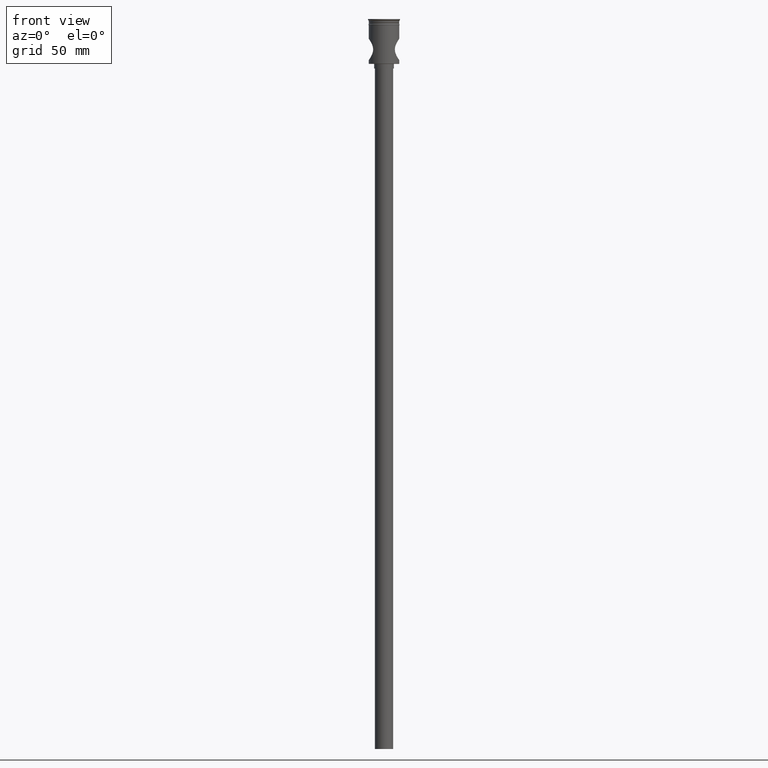
[diagram: clean part render]
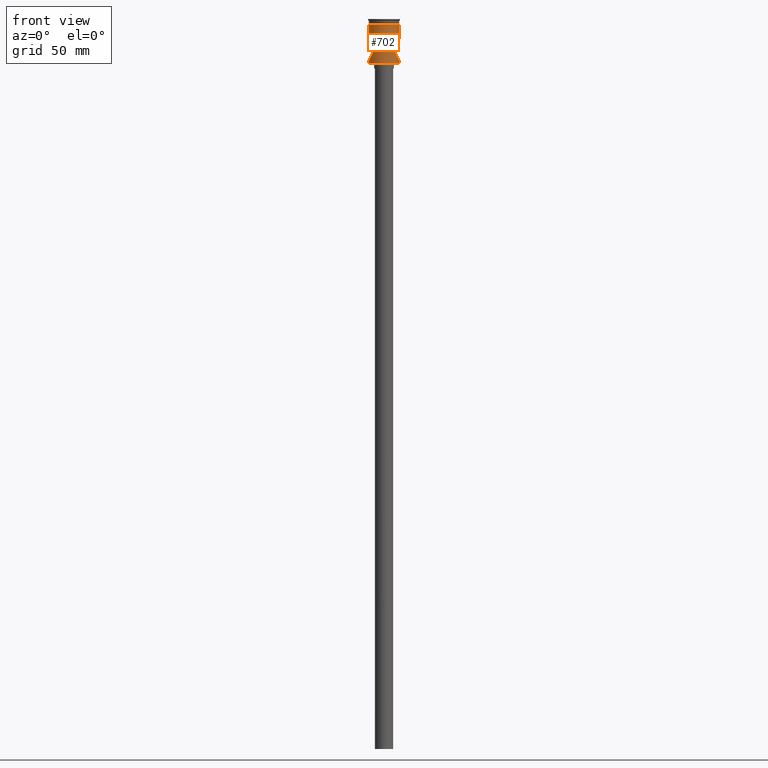
[diagram: same view with one face highlighted and labeled with its STEP entity id]
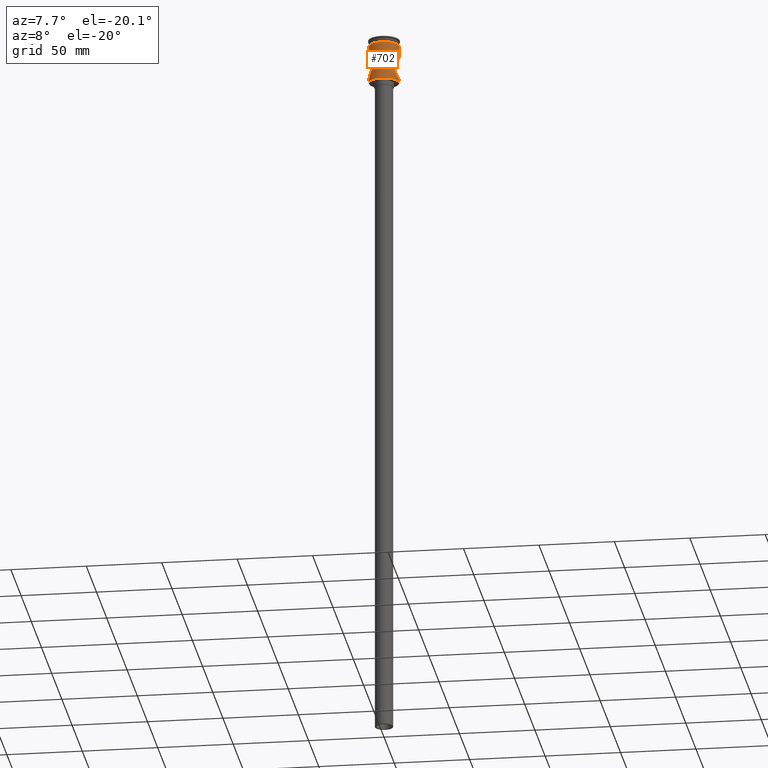
[diagram: same view with one face highlighted and labeled with its STEP entity id]
A machine part, front view. The second image highlights one B-rep face of the part: STEP entity #702.
A second angle (auxiliary view) of the same face is appended — the face is thin or edge-on in the first view.
In plain terms, the highlighted cylindrical surface (edge-blend (fillet) strip) has radius 10 mm, axis along (-0, -0, 1).
Its self-contained STEP definition (entity closure, byte-faithful):
#10 = CARTESIAN_POINT ( 'NONE',  ( -9.999999999999994671, 1.224646799147352665E-15, -29.29999999999994387 ) ) ;
#15 = CARTESIAN_POINT ( 'NONE',  ( -9.999999999999996447, 0.000000000000000000, -27.00000000000000355 ) ) ;
#37 = CARTESIAN_POINT ( 'NONE',  ( 9.832878540591767802, -1.879722866531851500, -13.24054240779418912 ) ) ;
#50 = CARTESIAN_POINT ( 'NONE',  ( -8.315624236750039699, -5.562535070965513029, -24.27231501587448292 ) ) ;
#55 = CARTESIAN_POINT ( 'NONE',  ( 0.000000000000000000, 0.000000000000000000, -29.29999999999994387 ) ) ;
#75 = CARTESIAN_POINT ( 'NONE',  ( -7.720495804876727597, -6.356685689900114511, -17.05985571267803991 ) ) ;
#81 = CARTESIAN_POINT ( 'NONE',  ( 9.999999999999994671, 0.000000000000000000, -29.29999999999994387 ) ) ;
#91 = CARTESIAN_POINT ( 'NONE',  ( 8.322069302564294446, -5.553051878775055350, -24.28499264081531805 ) ) ;
#99 = CARTESIAN_POINT ( 'NONE',  ( -8.053311715077983379, -5.930176009131116643, -16.27420902905398847 ) ) ;
#113 = CARTESIAN_POINT ( 'NONE',  ( -9.999999999999994671, 1.229780025839397734E-15, -13.00000000000000355 ) ) ;
#115 = EDGE_CURVE ( 'NONE', #1435, #184, #1477, .T. ) ;
#126 = LINE ( 'NONE', #1098, #528 ) ;
#166 = CARTESIAN_POINT ( 'NONE',  ( 7.140877080678153632, -7.000562488098498903, -19.52635574343557678 ) ) ;
#181 = CARTESIAN_POINT ( 'NONE',  ( -7.234464554488559962, -6.904114004842420549, -18.82145945963318567 ) ) ;
#184 = VERTEX_POINT ( 'NONE', #484 ) ;
#185 = CARTESIAN_POINT ( 'NONE',  ( 9.999999999999996447, -0.2368473339933005184, -13.00000000000000178 ) ) ;
#189 = CARTESIAN_POINT ( 'NONE',  ( -7.325106434378655607, -6.807865243658027588, -21.64544578927128882 ) ) ;
#195 = CARTESIAN_POINT ( 'NONE',  ( -7.201179731105406212, -6.938600208746064979, -20.95536877560809330 ) ) ;
#225 = AXIS2_PLACEMENT_3D ( 'NONE', #55, #1011, #334 ) ;
#229 = CARTESIAN_POINT ( 'NONE',  ( -9.999999999999994671, 1.229780025839397734E-15, -13.00000000000000355 ) ) ;
#238 = CARTESIAN_POINT ( 'NONE',  ( 7.574535355013245486, -6.529908853628298537, -22.53201108648861961 ) ) ;
#284 = CARTESIAN_POINT ( 'NONE',  ( 9.492393824703038163, -3.176669941205827907, -13.74509325342724075 ) ) ;
#286 = DIRECTION ( 'NONE',  ( -0.000000000000000000, -0.000000000000000000, 1.000000000000000000 ) ) ;
#299 = CARTESIAN_POINT ( 'NONE',  ( -7.153700441637877994, -6.987541224765999814, -20.48080140017840378 ) ) ;
#306 = CARTESIAN_POINT ( 'NONE',  ( 8.315544161946235135, -5.562748588078726186, -15.72768175892419151 ) ) ;
#308 = CARTESIAN_POINT ( 'NONE',  ( -9.999999999999996447, 0.000000000000000000, -27.00000000000000355 ) ) ;
#314 = CARTESIAN_POINT ( 'NONE',  ( -9.965446655919851793, -0.9519641332654177335, -26.95088558220736275 ) ) ;
#317 = ORIENTED_EDGE ( 'NONE', *, *, #1041, .F. ) ;
#334 = DIRECTION ( 'NONE',  ( -1.000000000000000000, 0.000000000000000000, 0.000000000000000000 ) ) ;
#344 = VERTEX_POINT ( 'NONE', #608 ) ;
#345 = DIRECTION ( 'NONE',  ( -0.000000000000000000, -0.000000000000000000, 1.000000000000000000 ) ) ;
#353 = B_SPLINE_CURVE_WITH_KNOTS ( 'NONE', 3,
 ( #1473, #185, #400, #1498, #1239, #37, #1337, #284, #757, #879, #1465, #1129, #306, #523, #637, #1111, #894, #1457, #1345, #418, #766, #887, #166, #644, #426, #491, #366, #814, #238, #1048, #949, #714, #1185, #91, #1410, #478, #1179, #721, #1161, #360, #822, #1302, #591, #1290, #1057, #830 ),
 .UNSPECIFIED., .F., .F.,
 ( 4, 2, 2, 2, 2, 2, 2, 2, 2, 2, 2, 2, 2, 2, 2, 2, 2, 2, 2, 2, 2, 2, 4 ),
 ( 0.02273717132267115415, 0.02344677004960173464, 0.02415636877653231512, 0.02557556623039347263, 0.02699476368425463360, 0.02841396113811579111, 0.02983315859197695208, 0.03054275731890752910, 0.03125235604583810611, 0.03196195477276868313, 0.03267155349969926015, 0.03409075095356042112, 0.03550994840742158210, 0.03621954713435215911, 0.03692914586128273613, 0.03763874458821332009, 0.03834834331514389710, 0.03976754076900505808, 0.04118673822286621211, 0.04260593567672736615, 0.04331553440365794316, 0.04402513313058852018, 0.04544433058444967422 ),
 .UNSPECIFIED. ) ;
#360 = CARTESIAN_POINT ( 'NONE',  ( 9.675488818793544610, -2.536388918100088485, -26.52836702033824778 ) ) ;
#362 = DIRECTION ( 'NONE',  ( -0.000000000000000000, -0.000000000000000000, 1.000000000000000000 ) ) ;
#366 = CARTESIAN_POINT ( 'NONE',  ( 7.381411116935109540, -6.747102913955163039, -21.87877048370861033 ) ) ;
#399 = VERTEX_POINT ( 'NONE', #1422 ) ;
#400 = CARTESIAN_POINT ( 'NONE',  ( 9.991596185262174856, -0.4736682493084634071, -13.01198930438257939 ) ) ;
#414 = CARTESIAN_POINT ( 'NONE',  ( -9.834047061028449832, -1.872933838790286742, -26.76115115372198616 ) ) ;
#418 = CARTESIAN_POINT ( 'NONE',  ( 7.377383315084116155, -6.751497144694275754, -18.13709901651008494 ) ) ;
#421 = EDGE_CURVE ( 'NONE', #344, #723, #898, .T. ) ;
#426 = CARTESIAN_POINT ( 'NONE',  ( 7.191763660842745765, -6.949507115151161152, -20.96152780032075569 ) ) ;
#435 = DIRECTION ( 'NONE',  ( -0.000000000000000000, -0.000000000000000000, 1.000000000000000000 ) ) ;
#439 = CARTESIAN_POINT ( 'NONE',  ( -7.964400624432382614, -6.054727537725130837, -23.54044438658495153 ) ) ;
#452 = CARTESIAN_POINT ( 'NONE',  ( -9.553141715981869453, -2.964211287661886907, -13.65436461758241826 ) ) ;
#461 = EDGE_CURVE ( 'NONE', #620, #1489, #1344, .T. ) ;
#463 = CARTESIAN_POINT ( 'NONE',  ( -9.991574020215788110, -0.4743472386555552256, -13.01202085301403244 ) ) ;
#473 = ORIENTED_EDGE ( 'NONE', *, *, #928, .F. ) ;
#476 = CARTESIAN_POINT ( 'NONE',  ( -9.832512437962641627, -1.881659858244549621, -13.24107387809922720 ) ) ;
#478 = CARTESIAN_POINT ( 'NONE',  ( 8.860185483737918588, -4.650373212660213085, -25.25064384002004303 ) ) ;
#484 = CARTESIAN_POINT ( 'NONE',  ( 9.999999999999994671, 0.000000000000000000, -27.00000000000001066 ) ) ;
#491 = CARTESIAN_POINT ( 'NONE',  ( 7.326263957022343121, -6.806624336356016158, -21.65073055260621260 ) ) ;
#492 = ORIENTED_EDGE ( 'NONE', *, *, #461, .F. ) ;
#499 = ORIENTED_EDGE ( 'NONE', *, *, #421, .T. ) ;
#523 = CARTESIAN_POINT ( 'NONE',  ( 8.050554706296177088, -5.933943087171876130, -16.28011583648020988 ) ) ;
#524 = VECTOR ( 'NONE', #435, 1000.000000000000000 ) ;
#527 = CARTESIAN_POINT ( 'NONE',  ( -9.029024665842506181, -4.317593744654968368, -25.52832831042054451 ) ) ;
#528 = VECTOR ( 'NONE', #362, 1000.000000000000000 ) ;
#534 = CARTESIAN_POINT ( 'NONE',  ( -7.796463043157197959, -6.266459839169562507, -23.15209899686185580 ) ) ;
#540 = ORIENTED_EDGE ( 'NONE', *, *, #719, .F. ) ;
#548 = CARTESIAN_POINT ( 'NONE',  ( -9.999999999999998224, -0.4814323775651352944, -27.00000000000000711 ) ) ;
#558 = EDGE_CURVE ( 'NONE', #1281, #620, #1514, .T. ) ;
#581 = ORIENTED_EDGE ( 'NONE', *, *, #558, .F. ) ;
#591 = CARTESIAN_POINT ( 'NONE',  ( 9.867116120145132285, -1.641278058953922203, -26.80890176429205596 ) ) ;
#608 = CARTESIAN_POINT ( 'NONE',  ( 9.999999999999994671, -5.133226810943367768E-18, -13.00000000000000355 ) ) ;
#620 = VERTEX_POINT ( 'NONE', #15 ) ;
#637 = CARTESIAN_POINT ( 'NONE',  ( 7.963207023572480558, -6.050255927956311730, -16.47232531239752618 ) ) ;
#644 = CARTESIAN_POINT ( 'NONE',  ( 7.141989287018506438, -6.999427809131204548, -20.49012689816928301 ) ) ;
#657 = CARTESIAN_POINT ( 'NONE',  ( -7.368839572955796058, -6.761454996973015774, -18.12764364703030395 ) ) ;
#671 = CARTESIAN_POINT ( 'NONE',  ( -7.495754172928653425, -6.623269820279322317, -17.68917710553389711 ) ) ;
#674 = CARTESIAN_POINT ( 'NONE',  ( 9.999999999999994671, 0.000000000000000000, 0.000000000000000000 ) ) ;
#700 = EDGE_LOOP ( 'NONE', ( #581, #1450, #1454, #317, #499, #540, #473, #492 ) ) ;
#702 = ADVANCED_FACE ( 'NONE', ( #1005 ), #1361, .T. ) ;
#704 = CARTESIAN_POINT ( 'NONE',  ( -8.316470757484857756, -5.561257273121389844, -15.72607428983809008 ) ) ;
#714 = CARTESIAN_POINT ( 'NONE',  ( 7.969012120586810966, -6.042611853496006269, -23.54072391938827025 ) ) ;
#719 = EDGE_CURVE ( 'NONE', #399, #723, #1527, .T. ) ;
#721 = CARTESIAN_POINT ( 'NONE',  ( 9.351609315107900500, -3.564938189428362492, -26.04074502495871357 ) ) ;
#723 = VERTEX_POINT ( 'NONE', #874 ) ;
#757 = CARTESIAN_POINT ( 'NONE',  ( 9.347318963212909892, -3.576349491498993505, -13.96584429441085717 ) ) ;
#766 = CARTESIAN_POINT ( 'NONE',  ( 7.322655419112947150, -6.810500286563441641, -18.36528137380276249 ) ) ;
#772 = AXIS2_PLACEMENT_3D ( 'NONE', #1338, #286, #1467 ) ;
#776 = CARTESIAN_POINT ( 'NONE',  ( -7.153235015771535643, -6.988014041043822289, -19.52714534028609350 ) ) ;
#783 = CARTESIAN_POINT ( 'NONE',  ( -9.493823586986472662, -3.171854784083766532, -26.25704949909892605 ) ) ;
#788 = CARTESIAN_POINT ( 'NONE',  ( 0.000000000000000000, 0.000000000000000000, -3.999999999999996447 ) ) ;
#789 = CARTESIAN_POINT ( 'NONE',  ( -9.735585976469913305, -2.326309258653755929, -26.61812786508322759 ) ) ;
#795 = CARTESIAN_POINT ( 'NONE',  ( -9.267396788860443380, -3.762388530127550812, -14.09286872329777296 ) ) ;
#810 = CARTESIAN_POINT ( 'NONE',  ( -9.343068346694407111, -3.570972421456891865, -13.97506645596566699 ) ) ;
#814 = CARTESIAN_POINT ( 'NONE',  ( 7.505468983612138878, -6.608824641700789648, -22.31875249157932117 ) ) ;
#822 = CARTESIAN_POINT ( 'NONE',  ( 9.730782946235684960, -2.316105786581691195, -26.60989879506474054 ) ) ;
#830 = CARTESIAN_POINT ( 'NONE',  ( 9.999999999999994671, 0.000000000000000000, -27.00000000000001066 ) ) ;
#874 = CARTESIAN_POINT ( 'NONE',  ( 9.999999999999998224, 0.000000000000000000, -3.999999999999996447 ) ) ;
#879 = CARTESIAN_POINT ( 'NONE',  ( 9.028965068475372391, -4.317457269925927044, -14.47181101200376219 ) ) ;
#887 = CARTESIAN_POINT ( 'NONE',  ( 7.189382404875344967, -6.951946978929631982, -19.05590796920065344 ) ) ;
#894 = CARTESIAN_POINT ( 'NONE',  ( 7.717429328536873356, -6.360383034377455225, -17.06803860621226221 ) ) ;
#898 = LINE ( 'NONE', #1349, #1404 ) ;
#905 = CARTESIAN_POINT ( 'NONE',  ( -7.141483849871206324, -6.999943458932624374, -20.23958506209359243 ) ) ;
#919 = CARTESIAN_POINT ( 'NONE',  ( -7.967226261725709691, -6.044961550507585990, -16.46329765270407464 ) ) ;
#928 = EDGE_CURVE ( 'NONE', #1489, #399, #126, .T. ) ;
#949 = CARTESIAN_POINT ( 'NONE',  ( 7.802583678074496376, -6.256037095215745580, -23.14831442975813758 ) ) ;
#950 = CIRCLE ( 'NONE', #225, 9.999999999999994671 ) ;
#954 = CARTESIAN_POINT ( 'NONE',  ( -8.857763224790602408, -4.655166966848104160, -14.75332674821394185 ) ) ;
#998 = CARTESIAN_POINT ( 'NONE',  ( -8.500359578522523663, -5.279417043634754947, -24.61763755135370957 ) ) ;
#1002 = EDGE_CURVE ( 'NONE', #1281, #1435, #950, .T. ) ;
#1005 = FACE_OUTER_BOUND ( 'NONE', #700, .T. ) ;
#1007 = CARTESIAN_POINT ( 'NONE',  ( -7.503273641266416050, -6.611317046147628496, -22.31171733569519944 ) ) ;
#1011 = DIRECTION ( 'NONE',  ( -0.000000000000000000, -0.000000000000000000, 1.000000000000000000 ) ) ;
#1041 = EDGE_CURVE ( 'NONE', #344, #184, #353, .T. ) ;
#1048 = CARTESIAN_POINT ( 'NONE',  ( 7.723089038241833570, -6.353518016691835690, -22.94679462982523077 ) ) ;
#1057 = CARTESIAN_POINT ( 'NONE',  ( 9.999999999999996447, -0.4807969081117849930, -27.00000000000000711 ) ) ;
#1060 = CARTESIAN_POINT ( 'NONE',  ( -9.485754788391531633, -3.172574074835091462, -13.75608760595409308 ) ) ;
#1094 = VECTOR ( 'NONE', #345, 1000.000000000000000 ) ;
#1098 = CARTESIAN_POINT ( 'NONE',  ( -9.999999999999994671, 1.224646799147352665E-15, 0.000000000000000000 ) ) ;
#1111 = CARTESIAN_POINT ( 'NONE',  ( 7.796802139286404199, -6.263237125868980293, -16.86600156342441181 ) ) ;
#1123 = DIRECTION ( 'NONE',  ( 1.000000000000000000, 0.000000000000000000, 0.000000000000000000 ) ) ;
#1125 = CARTESIAN_POINT ( 'NONE',  ( -9.349377247001186220, -3.571280898155816619, -26.03738208151085942 ) ) ;
#1129 = CARTESIAN_POINT ( 'NONE',  ( 8.497179343882919511, -5.284524261307589121, -15.38819392766633065 ) ) ;
#1145 = CARTESIAN_POINT ( 'NONE',  ( -8.856372138511659386, -4.657577678256725306, -25.24421500772974625 ) ) ;
#1161 = CARTESIAN_POINT ( 'NONE',  ( 9.494221684495640190, -3.170672659151725803, -26.25765240908376441 ) ) ;
#1176 = CARTESIAN_POINT ( 'NONE',  ( -8.498707828545159160, -5.282283036785493380, -15.38527946463392659 ) ) ;
#1179 = CARTESIAN_POINT ( 'NONE',  ( 9.035512705743391493, -4.303590503429355785, -25.53881697926559369 ) ) ;
#1183 = CARTESIAN_POINT ( 'NONE',  ( -9.932071413309429886, -1.186883990593140314, -13.09730212679606964 ) ) ;
#1185 = CARTESIAN_POINT ( 'NONE',  ( 8.056358060451358938, -5.926078000082590336, -23.73242365119358865 ) ) ;
#1215 = AXIS2_PLACEMENT_3D ( 'NONE', #788, #1252, #1123 ) ;
#1233 = DIRECTION ( 'NONE',  ( -0.000000000000000000, -0.000000000000000000, 1.000000000000000000 ) ) ;
#1239 = CARTESIAN_POINT ( 'NONE',  ( 9.932287513067294071, -1.185065133237713564, -13.09699146176596152 ) ) ;
#1242 = CARTESIAN_POINT ( 'NONE',  ( -7.199668910925415055, -6.940164191266632976, -19.05657392165621999 ) ) ;
#1247 = CARTESIAN_POINT ( 'NONE',  ( -7.573222039985393117, -6.531435267832767622, -22.52812481744789608 ) ) ;
#1252 = DIRECTION ( 'NONE',  ( -0.000000000000000000, -0.000000000000000000, 1.000000000000000000 ) ) ;
#1262 = CARTESIAN_POINT ( 'NONE',  ( -9.999999999999992895, -0.2371603752032593604, -12.99999999999999822 ) ) ;
#1267 = CARTESIAN_POINT ( 'NONE',  ( -9.029975738911995009, -4.315133941133940887, -14.47019995321800501 ) ) ;
#1281 = VERTEX_POINT ( 'NONE', #10 ) ;
#1290 = CARTESIAN_POINT ( 'NONE',  ( 9.965325511264428116, -0.9525671816038108197, -26.95070955909274346 ) ) ;
#1302 = CARTESIAN_POINT ( 'NONE',  ( 9.826638545464751573, -1.868062541291061418, -26.75021854738501403 ) ) ;
#1337 = CARTESIAN_POINT ( 'NONE',  ( 9.736384942666981956, -2.323699784143519409, -13.38067151163704516 ) ) ;
#1338 = CARTESIAN_POINT ( 'NONE',  ( 0.000000000000000000, 0.000000000000000000, 0.000000000000000000 ) ) ;
#1344 = B_SPLINE_CURVE_WITH_KNOTS ( 'NONE', 3,
 ( #308, #548, #314, #414, #789, #783, #1125, #527, #1145, #998, #50, #439, #534, #1247, #1007, #1469, #189, #1354, #195, #299, #905, #1369, #776, #1242, #181, #657, #671, #75, #1414, #919, #99, #704, #1176, #954, #1267, #795, #810, #1060, #452, #1519, #476, #1183, #1495, #463, #1262, #113 ),
 .UNSPECIFIED., .F., .F.,
 ( 4, 2, 2, 2, 2, 2, 2, 2, 2, 2, 2, 2, 2, 2, 2, 2, 2, 2, 2, 2, 2, 2, 4 ),
 ( 0.000000000000000000, 0.001421073207666954290, 0.002842146415333908580, 0.004263219623000863087, 0.005684292830667816293, 0.007105366038334770366, 0.008526439246001722705, 0.009236975849835196706, 0.009947512453668670707, 0.01065804905750214297, 0.01136858566133561697, 0.01207912226516908924, 0.01278965886900256151, 0.01421073207666950777, 0.01492126868050297657, 0.01563180528433644884, 0.01705287849200338296, 0.01847395169967032055, 0.01918448830350378762, 0.01989502490733725468, 0.02131609811500418880, 0.02202663471883765586, 0.02273717132267112292 ),
 .UNSPECIFIED. ) ;
#1345 = CARTESIAN_POINT ( 'NONE',  ( 7.500597748671954612, -6.614342876288897166, -17.69704926583546722 ) ) ;
#1349 = CARTESIAN_POINT ( 'NONE',  ( 9.999999999999994671, 0.000000000000000000, 0.000000000000000000 ) ) ;
#1354 = CARTESIAN_POINT ( 'NONE',  ( -7.236111701560243858, -6.902383710959965057, -21.18811620976742915 ) ) ;
#1361 = CYLINDRICAL_SURFACE ( 'NONE', #772, 9.999999999999994671 ) ;
#1369 = CARTESIAN_POINT ( 'NONE',  ( -7.141373392009655596, -7.000056148497765030, -19.76373034873125434 ) ) ;
#1390 = CARTESIAN_POINT ( 'NONE',  ( -9.999999999999994671, 1.224646799147352665E-15, 0.000000000000000000 ) ) ;
#1404 = VECTOR ( 'NONE', #1233, 1000.000000000000000 ) ;
#1410 = CARTESIAN_POINT ( 'NONE',  ( 8.503943671969897977, -5.273689396165734067, -24.62422230267287304 ) ) ;
#1414 = CARTESIAN_POINT ( 'NONE',  ( -7.801002067758137315, -6.258004569467827238, -16.85560777748650096 ) ) ;
#1422 = CARTESIAN_POINT ( 'NONE',  ( -10.00000000000000000, 1.224646799147353256E-15, -3.999999999999996447 ) ) ;
#1435 = VERTEX_POINT ( 'NONE', #81 ) ;
#1450 = ORIENTED_EDGE ( 'NONE', *, *, #1002, .T. ) ;
#1454 = ORIENTED_EDGE ( 'NONE', *, *, #115, .T. ) ;
#1457 = CARTESIAN_POINT ( 'NONE',  ( 7.569330506494650557, -6.535933251526300225, -17.48356472559869701 ) ) ;
#1465 = CARTESIAN_POINT ( 'NONE',  ( 8.853430568094129427, -4.663155653245506294, -14.76073180007296415 ) ) ;
#1467 = DIRECTION ( 'NONE',  ( 1.000000000000000000, 0.000000000000000000, 0.000000000000000000 ) ) ;
#1469 = CARTESIAN_POINT ( 'NONE',  ( -7.379165411094855465, -6.749558967525724817, -21.87002777218120286 ) ) ;
#1473 = CARTESIAN_POINT ( 'NONE',  ( 9.999999999999994671, -5.133226810943367768E-18, -13.00000000000000355 ) ) ;
#1477 = LINE ( 'NONE', #674, #524 ) ;
#1489 = VERTEX_POINT ( 'NONE', #229 ) ;
#1495 = CARTESIAN_POINT ( 'NONE',  ( -9.957729828106902659, -0.9487746701410776362, -13.06049825370512885 ) ) ;
#1498 = CARTESIAN_POINT ( 'NONE',  ( 9.957864273581442660, -0.9472565907286202291, -13.06030547907275619 ) ) ;
#1514 = LINE ( 'NONE', #1390, #1094 ) ;
#1519 = CARTESIAN_POINT ( 'NONE',  ( -9.735967975428483356, -2.325336189795351949, -13.38128717480536167 ) ) ;
#1527 = CIRCLE ( 'NONE', #1215, 9.999999999999998224 ) ;